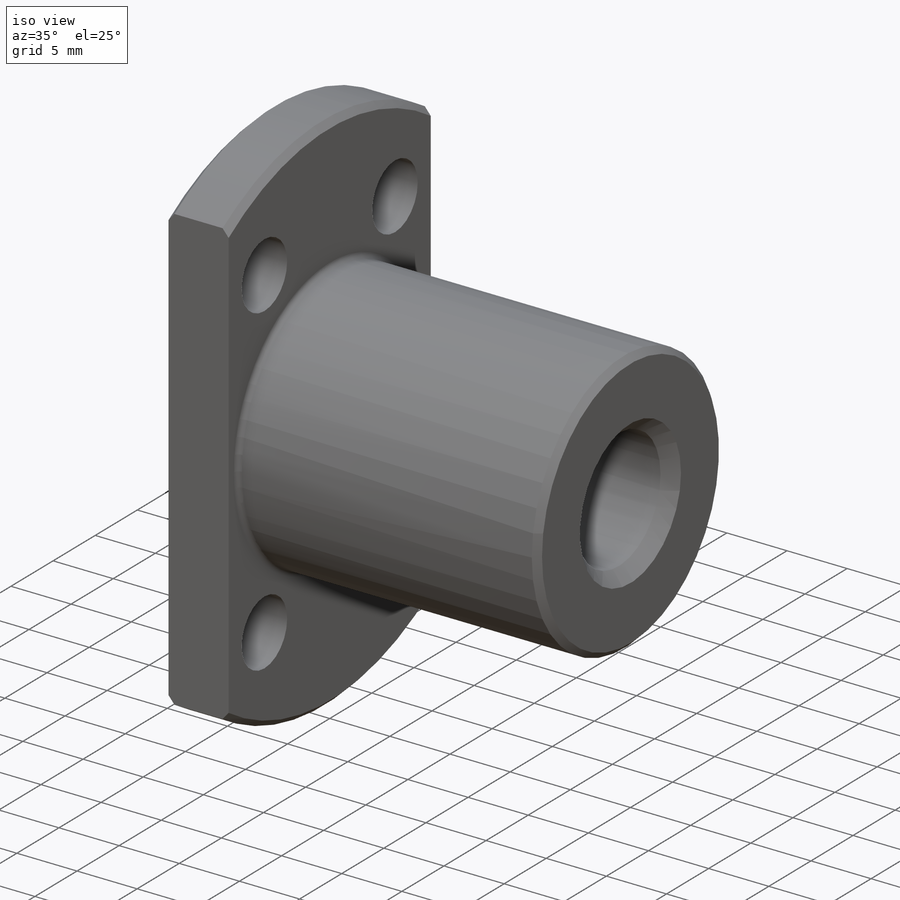
[diagram: iso view]
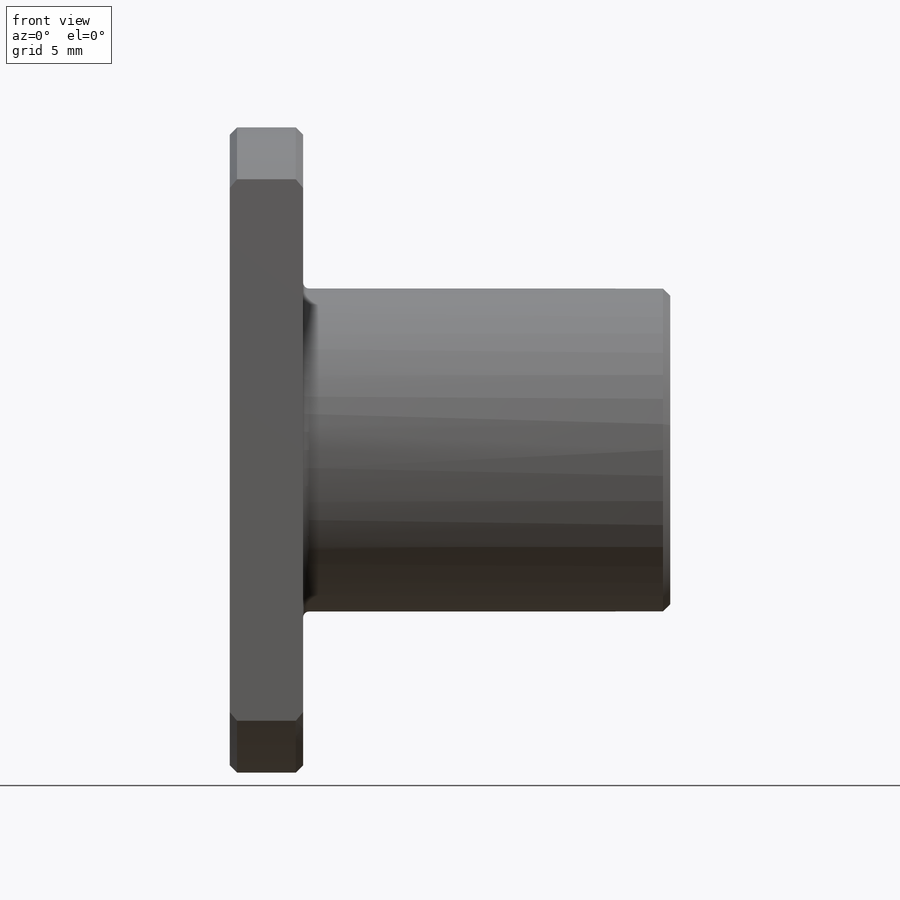
[diagram: front view]
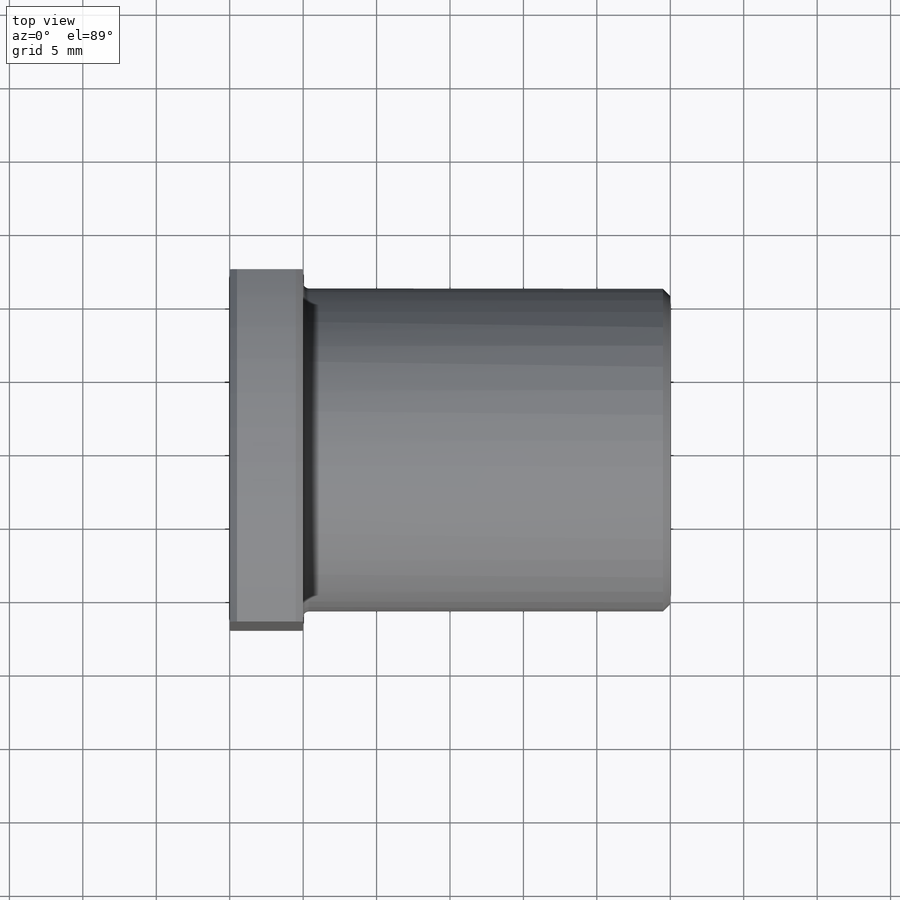
[diagram: top view]
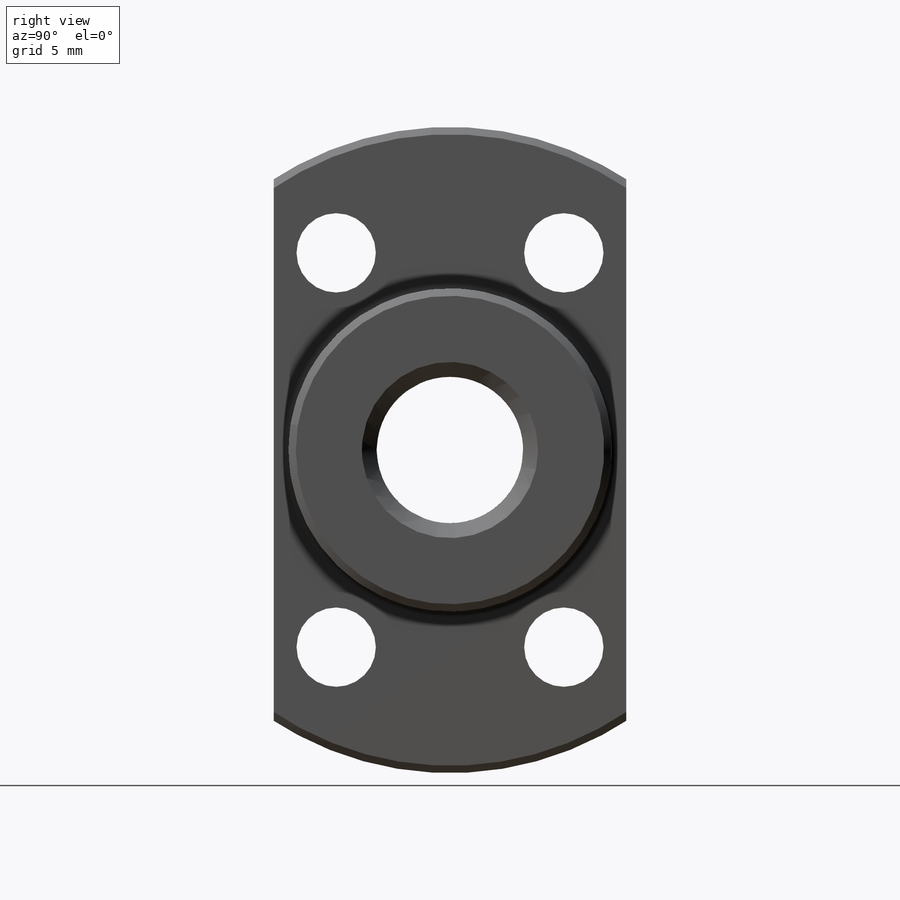
[diagram: right view]
SOLIDWORKS PART (.sldprt)
format: sldprt  version: not decoded by parser v0  size: 231,424 bytes
history: native  units: mm
features: plane x7, sketch x7, cut_extrude x5, material x1, revolve x1, cut_revolve x1, thread x1 (+13 scaffold rows collapsed)
feature tree (36):
  scaffold x13  (default folders/planes/origin — collapsed)
  material  "Material <not specified>"
  plane  "Plane1"
  sketch  "Sketch1"
  revolve  "Revolve1"  Angle=360deg
  plane  "Plane2"
  sketch  "Sketch2"
  cut_revolve  "Cut-Revolve1"  [1 undecoded]
  thread  "Cosmetic Thread1"  Diameter=30mm  [1 undecoded]
  plane  "Plane3"
  sketch  "Sketch3"
  cut_extrude  "Cut-Extrude1"  Depth=7.5mm
  plane  "Plane4"
  sketch  "Sketch4"
  cut_extrude  "Cut-Extrude2"  Depth=6mm
  plane  "Plane5"
  sketch  "Sketch5"
  cut_extrude  "Cut-Extrude3"  Depth=6mm
  plane  "Plane6"
  sketch  "Sketch6"
  cut_extrude  "Cut-Extrude4"  Depth=6mm
  plane  "Plane7"
  sketch  "Sketch7"
  cut_extrude  "Cut-Extrude5"  Depth=6mm
decode coverage: 7 of 15 modeling features carry decoded parameters
note: 2 parameter values undecoded
note: suppression state not decoded; provenance and decode notes live in map.json
